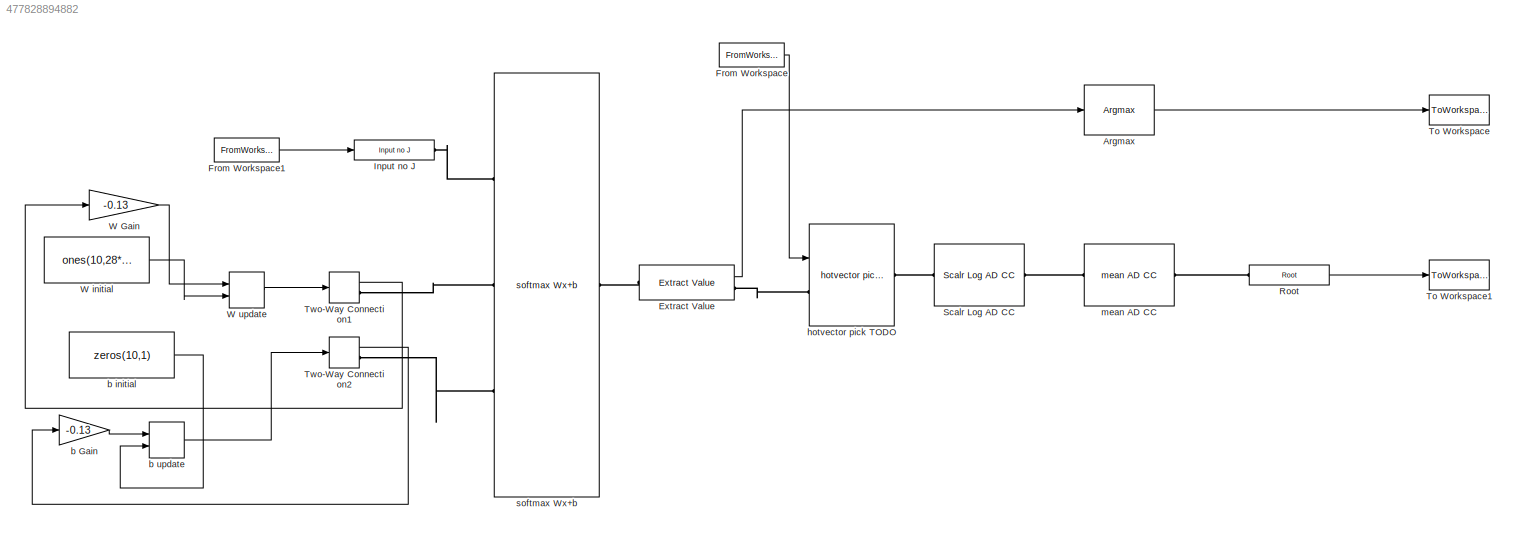
MODEL slx_477828894882
KIND model
CONFIG AbsTol = auto
CONFIG EnableMultiTasking = on
CONFIG FixedStep = 0.01
CONFIG MaxStep = auto
CONFIG MinStep = auto
CONFIG RelTol = 1e-3
CONFIG SampleTimeConstraint = Unconstrained
CONFIG Solver = FixedStepDiscrete
CONFIG SolverName = FixedStepDiscrete
CONFIG StartTime = 0.0
CONFIG StopTime = Inf
WORKSPACE source: MAT-file member
WORKSPACE Teimages = [0 0 0 0 0 0 0 0 0 0 0 0 ... (7840000 elements, 10000x784)]
WORKSPACE Telabels = [7 2 1 0 4 1 4 9 5 9 0 6 ... (10000 elements, 1x10000)]
BLOCK [Reference] Argmax   REF=autodiff/Common/Argmax   (lib defined in slx_73a817ef6e8b)
  Ports = [1, 1]
  SourceBlock = autodiff/Common/Argmax
  SourceProductName = AutoDiff
BLOCK [Reference] Extract Value  REF=autodiff/Common/Extract Value  (lib defined in slx_73a817ef6e8b)
  Ports = [0, 1, 0, 0, 0, 1, 1]
  SourceBlock = autodiff/Common/Extract Value
  SourceProductName = AutoDiff
BLOCK [FromWorkspace] From Workspace
  SampleTime = 0
  VariableName = Trlabelshotsx
  ZeroCross = on
BLOCK [FromWorkspace] From Workspace1
  SampleTime = 0
  VariableName = Trimagesx
  ZeroCross = on
BLOCK [Reference] Input no J  REF=autodiff/Common/Input no J  (lib defined in slx_73a817ef6e8b)
  Ports = [1, 0, 0, 0, 0, 0, 1]
  SourceBlock = autodiff/Common/Input no J
  SourceProductName = AutoDiff
BLOCK [Reference] Root  REF=autodiff/Common/Root  (lib defined in slx_73a817ef6e8b)
  Ports = [0, 1, 0, 0, 0, 1]
  SourceBlock = autodiff/Common/Root
  SourceProductName = AutoDiff
BLOCK [Reference] Scalr Log AD CC  REF=autodiff/Scalr Log AD CC  (lib defined in slx_73a817ef6e8b)
  Ports = [0, 0, 0, 0, 0, 1, 1]
  SourceBlock = autodiff/Scalr Log AD CC
  SourceProductName = AutoDiff
BLOCK [ToWorkspace] To Workspace
  FixptAsFi = on
  MaxDataPoints = inf
  Ports = [1]
  SampleTime = -1
  Save2DSignal = 3-D array (concatenate along third dimension)
  SaveFormat = Timeseries
  VariableName = outlabels
BLOCK [ToWorkspace] To Workspace1
  FixptAsFi = on
  MaxDataPoints = inf
  Ports = [1]
  SampleTime = -1
  Save2DSignal = 3-D array (concatenate along third dimension)
  SaveFormat = Timeseries
  VariableName = loss
BLOCK [TwoWayConnection] Two-Way Connection1
  Ports = [1, 1, 0, 0, 0, 0, 1]
BLOCK [TwoWayConnection] Two-Way Connection2
  Ports = [1, 1, 0, 0, 0, 0, 1]
BLOCK [Gain] W Gain
  Gain = -0.13
  OutDataTypeStr = Inherit: Inherit via internal rule
  ParamDataTypeStr = Inherit: Inherit via internal rule
  SaturateOnIntegerOverflow = off
BLOCK [Constant] W initial
  Value = ones(10,28*28)
BLOCK [DiscreteIntegrator] W update
  ICPrevOutput = DiscIntNeverNeededParam
  ICPrevScaledInput = DiscIntNeverNeededParam
  InitialConditionSetting = State (most efficient)
  InitialConditionSource = external
  Ports = [2, 1]
  SampleTime = -1
BLOCK [Gain] b Gain
  Gain = -0.13
  OutDataTypeStr = Inherit: Inherit via internal rule
  ParamDataTypeStr = Inherit: Inherit via internal rule
  SaturateOnIntegerOverflow = off
BLOCK [Constant] b initial
  Value = zeros(10,1)
BLOCK [DiscreteIntegrator] b update
  ICPrevOutput = DiscIntNeverNeededParam
  ICPrevScaledInput = DiscIntNeverNeededParam
  InitialConditionSetting = State (most efficient)
  InitialConditionSource = external
  Ports = [2, 1]
  SampleTime = -1
BLOCK [Reference] hotvector pick TODO  REF=autodiff/hotvector pick TODO  (lib defined in slx_73a817ef6e8b)
  Ports = [1, 0, 0, 0, 0, 1, 1]
  SourceBlock = autodiff/hotvector pick TODO
  SourceProductName = AutoDiff
  SourceType = SubSystem
BLOCK [Reference] mean AD CC  REF=autodiff/mean AD CC  (lib defined in slx_73a817ef6e8b)
  Ports = [0, 0, 0, 0, 0, 1, 1]
  SourceBlock = autodiff/mean AD CC
  SourceProductName = AutoDiff
  SourceType = SubSystem
BLOCK [Reference] softmax Wx+b  REF=autodiff/High Scalar/softmax Wx+b  (lib defined in slx_73a817ef6e8b)
  Ports = [0, 0, 0, 0, 0, 3, 1]
  SourceBlock = autodiff/High Scalar/softmax Wx+b
  SourceProductName = AutoDiff
  SourceType = SubSystem
LINE Argmax :1 -> To Workspace:1
LINE Extract Value:1 -> Argmax :1
LINE From Workspace1:1 -> Input no J:1
LINE From Workspace:1 -> hotvector pick TODO:1
LINE Root:1 -> To Workspace1:1
LINE Two-Way Connection1:1 -> W Gain:1
LINE Two-Way Connection2:1 -> b Gain:1
LINE W Gain:1 -> W update:1
LINE W initial:1 -> W update:2
LINE W update:1 -> Two-Way Connection1:1
LINE b Gain:1 -> b update:1
LINE b initial:1 -> b update:2
LINE b update:1 -> Two-Way Connection2:1
PLINE Extract Value:LConn1 -- softmax Wx+b:RConn1
PLINE Extract Value:RConn1 -- hotvector pick TODO:LConn1
PLINE Input no J:RConn1 -- softmax Wx+b:LConn1
PLINE Root:LConn1 -- mean AD CC:RConn1
PLINE Scalr Log AD CC:LConn1 -- hotvector pick TODO:RConn1
PLINE Scalr Log AD CC:RConn1 -- mean AD CC:LConn1
PLINE Two-Way Connection1:RConn1 -- softmax Wx+b:LConn2
PLINE Two-Way Connection2:RConn1 -- softmax Wx+b:LConn3
